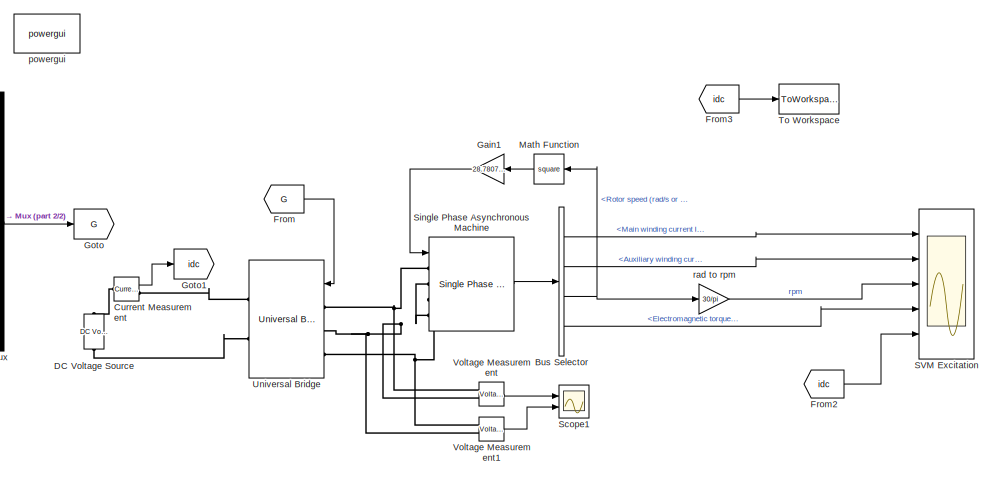
[diagram: root canvas - part 1/2, top right region]
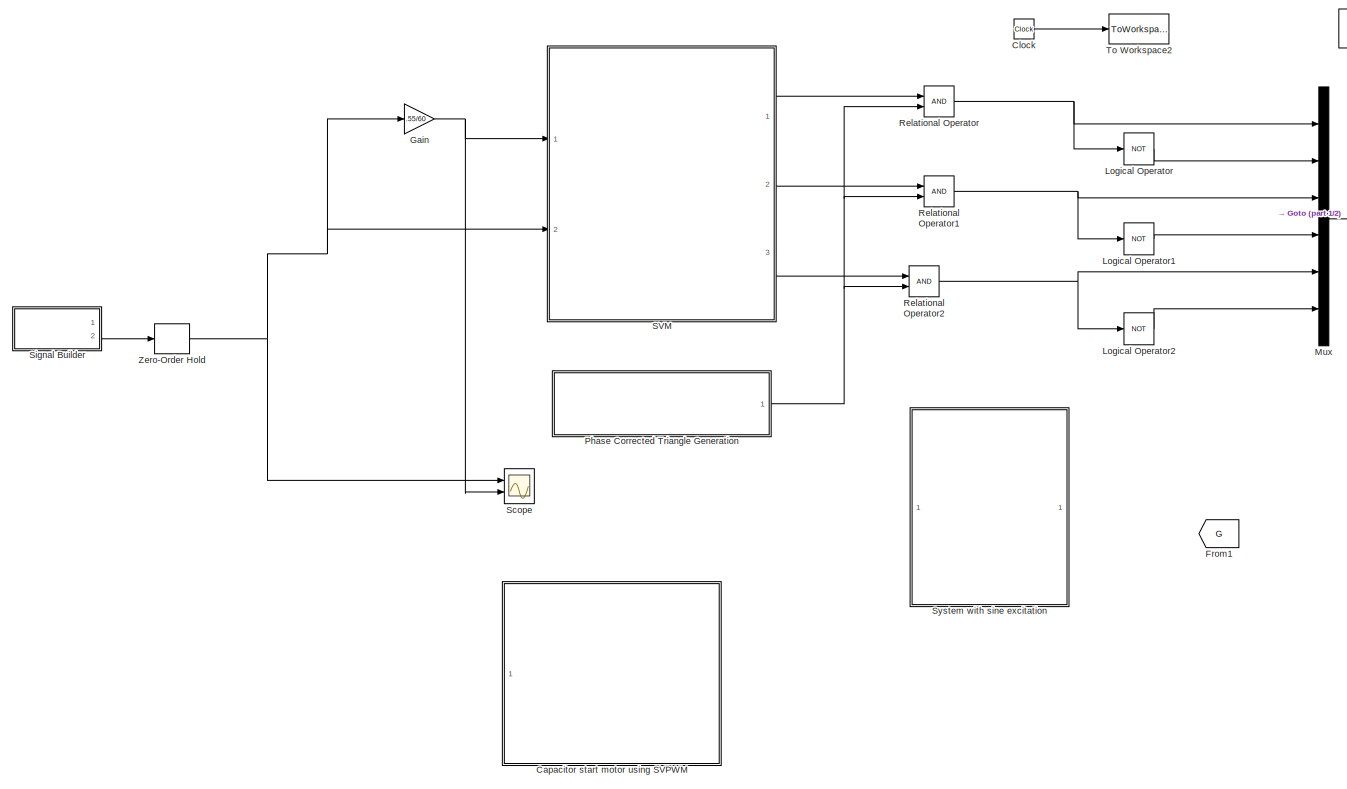
[diagram: root canvas - part 2/2, left side, full height]
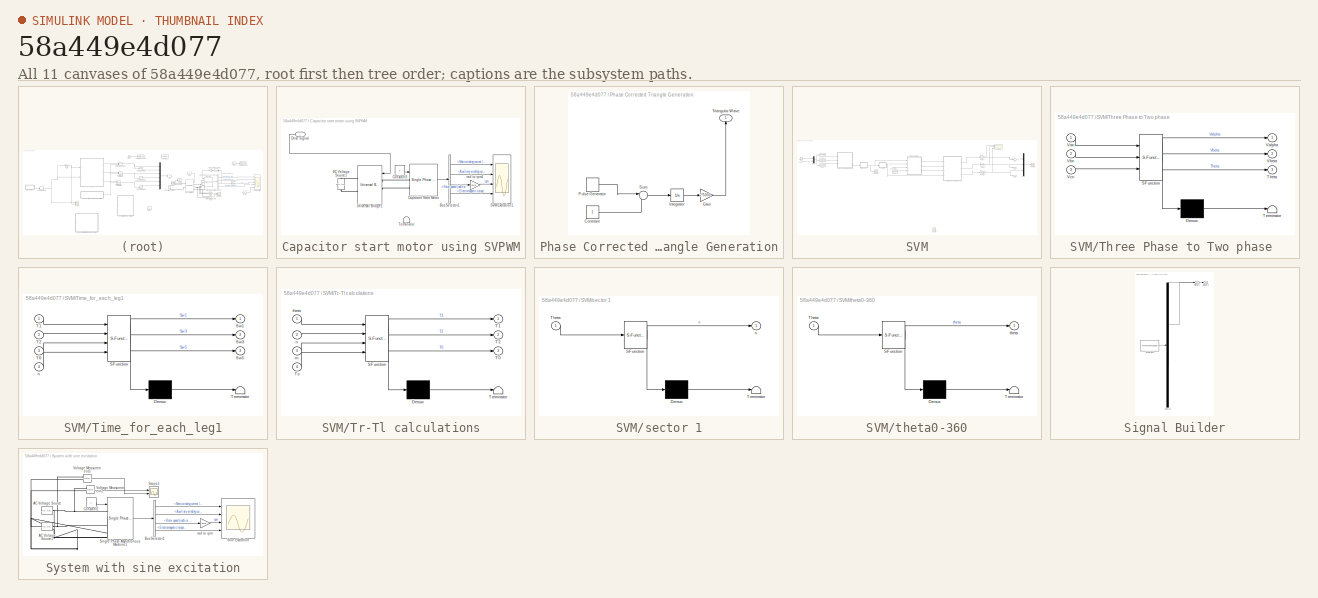
[diagram: thumbnail index - all 11 canvases of the model, root first then tree order]
MODEL slx_58a449e4d077
KIND model
CONFIG AbsTol = auto
CONFIG EnableMultiTasking = on
CONFIG FixedStep = 2e-6
CONFIG MaxStep = auto
CONFIG MinStep = auto
CONFIG RelTol = 1e-3
CONFIG SampleTimeConstraint = Unconstrained
CONFIG Solver = ode45
CONFIG SolverName = ode45
CONFIG StartTime = 0.0
CONFIG StopTime = 10
BLOCK [BusSelector] Bus Selector
  OutputAsBus = off
  OutputSignals = Stator measurements.Main winding current Ia (A or pu),Stator measurements.Auxiliary  winding current Ib (A or pu),Mechanical.Rotor speed (rad/s or pu),Mechanical.Electromagnetic torque Te (N*m or pu)  <repeated x3 — deduplicated; at blocks: Bus Selector, Bus Selector1>
  Ports = [1, 4]
BLOCK [SubSystem] Capacitor start motor using SVPWM
  Ports = [1]
  RequestExecContextInheritance = off
BLOCK [BusSelector] Capacitor start motor using SVPWM/Bus Selector1
  OutputAsBus = off
  Ports = [1, 4]
BLOCK [Reference] Capacitor start motor using SVPWM/Capacitor Start Motor  REF=powerlib/Machines/Single Phase
Asynchronous Machine
  Ports = [1, 1, 0, 0, 0, 2]
  SourceBlock = powerlib/Machines/Single Phase\nAsynchronous Machine
  SourceProductBaseCode = PS
  SourceProductName = Simscape Electrical
  SourceType = Single Phase Asynchronous Machine
BLOCK [Constant] Capacitor start motor using SVPWM/Constant3
BLOCK [Reference] Capacitor start motor using SVPWM/DC Voltage Source1  REF=powerlib/Electrical
Sources/DC Voltage Source
  Ports = [0, 0, 0, 0, 0, 1, 1]
  SourceBlock = powerlib/Electrical\nSources/DC Voltage Source
  SourceProductBaseCode = PS
  SourceProductName = Simscape Electrical
  SourceType = DC Voltage Source
BLOCK [Inport] Capacitor start motor using SVPWM/Drive Signal
  IconDisplay = Port number
BLOCK [Scope] Capacitor start motor using SVPWM/SVM Excitation1
  Floating = off
  NumInputPorts = 4
  Ports = [4]
  ScopeSpecificationString = Simulink.scopes.TimeScopeBlockCfg('CurrentConfiguration', extmgr.ConfigurationSet(extmgr.Configuration('Core','General UI',true),extmgr.Configuration('Core','Source UI',true),extmgr.Configuration('Sources','WiredSimulink',true,'DataLoggingVariableName','ScopeData5'),extmgr.Configuration('Visuals','Time Domain',true,'SerializedDisplays',{struct('MinYLimReal','-31.92791','MaxYLimReal','30.35062','YL...<+4208ch>
BLOCK [Terminator] Capacitor start motor using SVPWM/Terminator
BLOCK [Reference] Capacitor start motor using SVPWM/Universal Bridge1  REF=powerlib/Power
Electronics/Universal Bridge
  Ports = [1, 0, 0, 0, 0, 3, 2]
  SourceBlock = powerlib/Power\nElectronics/Universal Bridge
  SourceProductBaseCode = PS
  SourceProductName = Simscape Electrical
  SourceType = Universal Bridge
BLOCK [Gain] Capacitor start motor using SVPWM/rad to rpm1
  Gain = 30/pi
  OutDataTypeStr = Inherit: Inherit via internal rule
  ParamDataTypeStr = Inherit: Inherit via internal rule
  SaturateOnIntegerOverflow = off
BLOCK [Clock] Clock
BLOCK [Reference] Current Measurement  REF=powerlib/Measurements/Current Measurement
  Ports = [0, 1, 0, 0, 0, 1, 1]
  SourceBlock = powerlib/Measurements/Current Measurement
  SourceProductBaseCode = PS
  SourceProductName = Simscape Electrical
  SourceType = Current Measurement
  UserDataPersistent = on
BLOCK [Reference] DC Voltage Source  REF=powerlib/Electrical
Sources/DC Voltage Source
  Ports = [0, 0, 0, 0, 0, 1, 1]
  SourceBlock = powerlib/Electrical\nSources/DC Voltage Source
  SourceProductBaseCode = PS
  SourceProductName = Simscape Electrical
  SourceType = DC Voltage Source
BLOCK [From] From
  GotoTag = G
BLOCK [From] From1
  GotoTag = G
BLOCK [From] From2
  GotoTag = idc
BLOCK [From] From3
  GotoTag = idc
BLOCK [Gain] Gain
  Gain = .55/60
  OutDataTypeStr = Inherit: Inherit via internal rule
  ParamDataTypeStr = Inherit: Inherit via internal rule
  SaturateOnIntegerOverflow = off
BLOCK [Gain] Gain1
  Gain = 28.780793e-6
  OutDataTypeStr = Inherit: Inherit via internal rule
  ParamDataTypeStr = Inherit: Inherit via internal rule
  SaturateOnIntegerOverflow = off
BLOCK [Goto] Goto
  GotoTag = G
BLOCK [Goto] Goto1
  GotoTag = idc
BLOCK [Logic] Logical Operator
  AllPortsSameDT = off
  Operator = NOT
  OutDataTypeStr = boolean
  Ports = [1, 1]
BLOCK [Logic] Logical Operator1
  AllPortsSameDT = off
  Operator = NOT
  OutDataTypeStr = boolean
  Ports = [1, 1]
BLOCK [Logic] Logical Operator2
  AllPortsSameDT = off
  Operator = NOT
  OutDataTypeStr = boolean
  Ports = [1, 1]
BLOCK [Math] Math Function
  Operator = square
  Ports = [1, 1]
BLOCK [Mux] Mux
  DisplayOption = bar
  Inputs = 6
  Ports = [6, 1]
BLOCK [SubSystem] Phase Corrected Triangle Generation
  Ports = [0, 1]
  RequestExecContextInheritance = off
BLOCK [Constant] Phase Corrected Triangle Generation/Constant
BLOCK [Gain] Phase Corrected Triangle Generation/Gain
  Gain = 2*5000
  OutDataTypeStr = Inherit: Inherit via internal rule
  ParamDataTypeStr = Inherit: Inherit via internal rule
  SaturateOnIntegerOverflow = off
BLOCK [Integrator] Phase Corrected Triangle Generation/Integrator
  Ports = [1, 1]
BLOCK [DiscretePulseGenerator] Phase Corrected Triangle Generation/Pulse Generator
  Amplitude = 2
  Period = 1/5000
  Ports = [0, 1]
  PulseType = Time based
  PulseWidth = 50
BLOCK [Sum] Phase Corrected Triangle Generation/Sum
  IconShape = round
  InputSameDT = off
  Inputs = |+-
  OutDataTypeStr = Inherit: Inherit via internal rule
  Ports = [2, 1]
  SaturateOnIntegerOverflow = off
BLOCK [Outport] Phase Corrected Triangle Generation/Triangular Wave
  IconDisplay = Port number
BLOCK [RelationalOperator] Relational Operator
  InputSameDT = off
  OutDataTypeStr = boolean
  Ports = [2, 1]
BLOCK [RelationalOperator] Relational Operator1
  InputSameDT = off
  OutDataTypeStr = boolean
  Ports = [2, 1]
BLOCK [RelationalOperator] Relational Operator2
  InputSameDT = off
  OutDataTypeStr = boolean
  Ports = [2, 1]
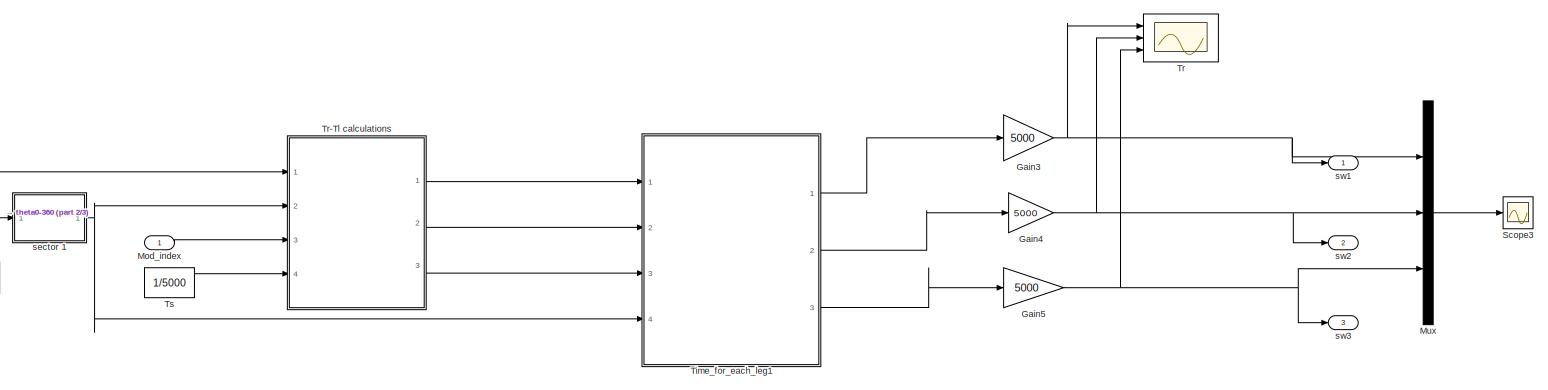
[diagram: SVM - part 1/3, top center region]
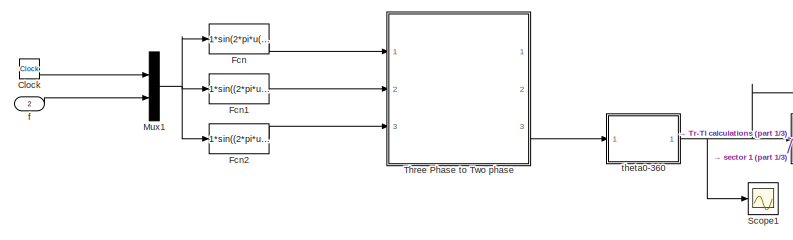
[diagram: SVM - part 2/3, top left region]
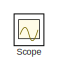
[diagram: SVM - part 3/3, bottom center region]
BLOCK [SubSystem] SVM
  Ports = [2, 3]
  RequestExecContextInheritance = off
BLOCK [Scope] SVM Excitation
  Floating = off
  NumInputPorts = 5
  Ports = [5]
  ScopeSpecificationString = Simulink.scopes.TimeScopeBlockCfg('CurrentConfiguration', extmgr.ConfigurationSet(extmgr.Configuration('Core','General UI',true),extmgr.Configuration('Core','Source UI',true),extmgr.Configuration('Sources','WiredSimulink',true,'DataLoggingVariableName','ScopeData1'),extmgr.Configuration('Visuals','Time Domain',true,'SerializedDisplays',{struct('MinYLimReal','21.66704','MaxYLimReal','22.63705','YLa...<+4898ch>
BLOCK [Clock] SVM/Clock
BLOCK [Fcn] SVM/Fcn
  Expr = 1*sin(2*pi*u(2)*u(1))
BLOCK [Fcn] SVM/Fcn1
  Expr = 1*sin((2*pi*u(2)*u(1))+(2*pi/3))
BLOCK [Fcn] SVM/Fcn2
  Expr = 1*sin((2*pi*u(2)*u(1))+(4*pi/3))
BLOCK [Gain] SVM/Gain3
  Gain = 5000
  OutDataTypeStr = Inherit: Inherit via internal rule
  ParamDataTypeStr = Inherit: Inherit via internal rule
  SaturateOnIntegerOverflow = off
BLOCK [Gain] SVM/Gain4
  Gain = 5000
  OutDataTypeStr = Inherit: Inherit via internal rule
  ParamDataTypeStr = Inherit: Inherit via internal rule
  SaturateOnIntegerOverflow = off
BLOCK [Gain] SVM/Gain5
  Gain = 5000
  OutDataTypeStr = Inherit: Inherit via internal rule
  ParamDataTypeStr = Inherit: Inherit via internal rule
  SaturateOnIntegerOverflow = off
BLOCK [Inport] SVM/Mod_index
  IconDisplay = Port number
BLOCK [Mux] SVM/Mux
  DisplayOption = bar
  Inputs = 3
  Ports = [3, 1]
BLOCK [Mux] SVM/Mux1
  DisplayOption = bar
  Inputs = 2
  Ports = [2, 1]
BLOCK [Scope] SVM/Scope
  Floating = off
  NumInputPorts = 1
  Ports = [1]
  ScopeSpecificationString = C++SS(StrPVP('Location','[5, 49, 1371, 727]'),StrPVP('Open','off'),MxPVP('AxesTitles',53,'struct(''axes1'',''%<SignalLabel>'')'),MxPVP('ScopeGraphics',56,'struct(''FigureColor'',''[0.5 0.5 0.5]'',''AxesColor'',''[0 0 0]'',''AxesTickColor'',''[1 1 1]'',''LineColors'',''[1 1 0;1 0 1;0 1 1;1 0 0;0 1 0;0 0 1]'',''LineStyles'',''-|-|-|-|-|-'',''LineWidths'',''[0.5 0.5 0.5 0.5 0.5 0.5]'',''MarkerStyles'...<+238ch>
BLOCK [Scope] SVM/Scope1
  Floating = off
  NumInputPorts = 1
  Ports = [1]
  ScopeSpecificationString = Simulink.scopes.TimeScopeBlockCfg('CurrentConfiguration', extmgr.ConfigurationSet(extmgr.Configuration('Core','General UI',true),extmgr.Configuration('Core','Source UI',true),extmgr.Configuration('Sources','WiredSimulink',true,'DataLoggingVariableName','ScopeData4'),extmgr.Configuration('Visuals','Time Domain',true,'SerializedDisplays',{struct('MinYLimReal','-0.7854','MaxYLimReal','7.06858','YLabe...<+1432ch>
BLOCK [Scope] SVM/Scope3
  Floating = off
  NumInputPorts = 1
  Ports = [1]
  ScopeSpecificationString = Simulink.scopes.TimeScopeBlockCfg('CurrentConfiguration', extmgr.ConfigurationSet(extmgr.Configuration('Core','General UI',true),extmgr.Configuration('Core','Source UI',true),extmgr.Configuration('Sources','WiredSimulink',true,'DataLoggingVariableName','ScopeData3','DataLoggingSaveFormat','StructureWithTime','DataLoggingDecimation','1','DataLoggingDecimateData',true),extmgr.Configuration('Visuals'...<+1708ch>
BLOCK [SubSystem] SVM/Three Phase to Two phase 
  ErrorFcn = Stateflow.Translate.translate
  PermitHierarchicalResolution = ExplicitOnly
  Ports = [3, 3]
  RequestExecContextInheritance = off
  SFBlockType = MATLAB Function
  TreatAsAtomicUnit = on
BLOCK [Demux] SVM/Three Phase to Two phase / Demux 
  Outputs = 1
  Ports = [1, 1]
BLOCK [S-Function] SVM/Three Phase to Two phase / SFunction 
  EnableBusSupport = on
  FunctionName = sf_sfun
  PortCounts = [3 4]
  Ports = [3, 4]
  SFcnIsStateOwnerBlock = off
  SFunctionDeploymentMode = off
  Tag = Stateflow S-Function SVM_single_phase_induction_motor_new 2
BLOCK [Terminator] SVM/Three Phase to Two phase / Terminator 
BLOCK [Outport] SVM/Three Phase to Two phase /Theta
  IconDisplay = Port number
  Port = 3
BLOCK [Outport] SVM/Three Phase to Two phase /Valpha
  IconDisplay = Port number
BLOCK [Inport] SVM/Three Phase to Two phase /Van
  IconDisplay = Port number
BLOCK [Outport] SVM/Three Phase to Two phase /Vbeta
  IconDisplay = Port number
  Port = 2
BLOCK [Inport] SVM/Three Phase to Two phase /Vbn
  IconDisplay = Port number
  Port = 2
BLOCK [Inport] SVM/Three Phase to Two phase /Vcn
  IconDisplay = Port number
  Port = 3
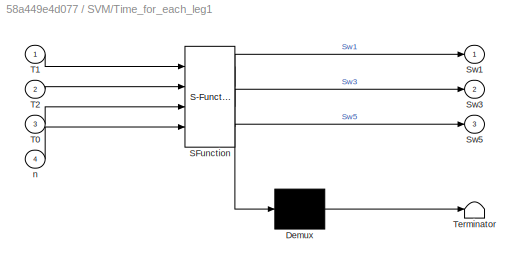
BLOCK [SubSystem] SVM/Time_for_each_leg1
  ErrorFcn = Stateflow.Translate.translate
  PermitHierarchicalResolution = ExplicitOnly
  Ports = [4, 3]
  RequestExecContextInheritance = off
  SFBlockType = MATLAB Function
  TreatAsAtomicUnit = on
BLOCK [Demux] SVM/Time_for_each_leg1/ Demux 
  Outputs = 1
  Ports = [1, 1]
BLOCK [S-Function] SVM/Time_for_each_leg1/ SFunction 
  EnableBusSupport = on
  FunctionName = sf_sfun
  PortCounts = [4 4]
  Ports = [4, 4]
  SFcnIsStateOwnerBlock = off
  SFunctionDeploymentMode = off
  Tag = Stateflow S-Function SVM_single_phase_induction_motor_new 10
BLOCK [Terminator] SVM/Time_for_each_leg1/ Terminator 
BLOCK [Outport] SVM/Time_for_each_leg1/Sw1
  IconDisplay = Port number
BLOCK [Outport] SVM/Time_for_each_leg1/Sw3
  IconDisplay = Port number
  Port = 2
BLOCK [Outport] SVM/Time_for_each_leg1/Sw5
  IconDisplay = Port number
  Port = 3
BLOCK [Inport] SVM/Time_for_each_leg1/T0
  IconDisplay = Port number
  Port = 3
BLOCK [Inport] SVM/Time_for_each_leg1/T1
  IconDisplay = Port number
BLOCK [Inport] SVM/Time_for_each_leg1/T2
  IconDisplay = Port number
  Port = 2
BLOCK [Inport] SVM/Time_for_each_leg1/n
  IconDisplay = Port number
  Port = 4
BLOCK [Scope] SVM/Tr
  Floating = off
  NumInputPorts = 3
  Ports = [3]
  ScopeSpecificationString = Simulink.scopes.TimeScopeBlockCfg('CurrentConfiguration', extmgr.ConfigurationSet(extmgr.Configuration('Core','General UI',true),extmgr.Configuration('Core','Source UI',true),extmgr.Configuration('Sources','WiredSimulink',true,'DataLoggingVariableName','ScopeData2','DataLoggingSaveFormat','StructureWithTime','DataLoggingDecimation','1','DataLoggingDecimateData',true),extmgr.Configuration('Visuals'...<+3737ch>
BLOCK [SubSystem] SVM/Tr-Tl calculations
  ErrorFcn = Stateflow.Translate.translate
  PermitHierarchicalResolution = ExplicitOnly
  Ports = [4, 3]
  RequestExecContextInheritance = off
  SFBlockType = MATLAB Function
  TreatAsAtomicUnit = on
BLOCK [Demux] SVM/Tr-Tl calculations/ Demux 
  Outputs = 1
  Ports = [1, 1]
BLOCK [S-Function] SVM/Tr-Tl calculations/ SFunction 
  EnableBusSupport = on
  FunctionName = sf_sfun
  PortCounts = [4 4]
  Ports = [4, 4]
  SFcnIsStateOwnerBlock = off
  SFunctionDeploymentMode = off
  Tag = Stateflow S-Function SVM_single_phase_induction_motor_new 9
BLOCK [Terminator] SVM/Tr-Tl calculations/ Terminator 
BLOCK [Outport] SVM/Tr-Tl calculations/T0
  IconDisplay = Port number
  Port = 3
BLOCK [Outport] SVM/Tr-Tl calculations/T1
  IconDisplay = Port number
BLOCK [Outport] SVM/Tr-Tl calculations/T2
  IconDisplay = Port number
  Port = 2
BLOCK [Inport] SVM/Tr-Tl calculations/Ts
  IconDisplay = Port number
  Port = 4
BLOCK [Inport] SVM/Tr-Tl calculations/m
  IconDisplay = Port number
  Port = 3
BLOCK [Inport] SVM/Tr-Tl calculations/n
  IconDisplay = Port number
  Port = 2
BLOCK [Inport] SVM/Tr-Tl calculations/theta
  IconDisplay = Port number
BLOCK [Constant] SVM/Ts 
  Value = 1/5000
BLOCK [Inport] SVM/f
  IconDisplay = Port number
  Port = 2
BLOCK [SubSystem] SVM/sector 1
  ErrorFcn = Stateflow.Translate.translate
  PermitHierarchicalResolution = ExplicitOnly
  Ports = [1, 1]
  RequestExecContextInheritance = off
  SFBlockType = MATLAB Function
  TreatAsAtomicUnit = on
BLOCK [Demux] SVM/sector 1/ Demux 
  Outputs = 1
  Ports = [1, 1]
BLOCK [S-Function] SVM/sector 1/ SFunction 
  EnableBusSupport = on
  FunctionName = sf_sfun
  PortCounts = [1 2]
  Ports = [1, 2]
  SFcnIsStateOwnerBlock = off
  SFunctionDeploymentMode = off
  Tag = Stateflow S-Function SVM_single_phase_induction_motor_new 8
BLOCK [Terminator] SVM/sector 1/ Terminator 
BLOCK [Inport] SVM/sector 1/Theta
  IconDisplay = Port number
BLOCK [Outport] SVM/sector 1/n
  IconDisplay = Port number
BLOCK [Outport] SVM/sw1
  IconDisplay = Port number
BLOCK [Outport] SVM/sw2
  IconDisplay = Port number
  Port = 2
BLOCK [Outport] SVM/sw3
  IconDisplay = Port number
  Port = 3
BLOCK [SubSystem] SVM/theta0-360
  ErrorFcn = Stateflow.Translate.translate
  PermitHierarchicalResolution = ExplicitOnly
  Ports = [1, 1]
  RequestExecContextInheritance = off
  SFBlockType = MATLAB Function
  TreatAsAtomicUnit = on
BLOCK [Demux] SVM/theta0-360/ Demux 
  Outputs = 1
  Ports = [1, 1]
BLOCK [S-Function] SVM/theta0-360/ SFunction 
  EnableBusSupport = on
  FunctionName = sf_sfun
  PortCounts = [1 2]
  Ports = [1, 2]
  SFcnIsStateOwnerBlock = off
  SFunctionDeploymentMode = off
  Tag = Stateflow S-Function SVM_single_phase_induction_motor_new 7
BLOCK [Terminator] SVM/theta0-360/ Terminator 
BLOCK [Inport] SVM/theta0-360/Theta
  IconDisplay = Port number
BLOCK [Outport] SVM/theta0-360/theta
  IconDisplay = Port number
BLOCK [Scope] Scope
  Floating = off
  NumInputPorts = 2
  Ports = [2]
  ScopeSpecificationString = Simulink.scopes.TimeScopeBlockCfg('CurrentConfiguration', extmgr.ConfigurationSet(extmgr.Configuration('Core','General UI',true),extmgr.Configuration('Core','Source UI',true),extmgr.Configuration('Sources','WiredSimulink',true,'DataLoggingVariableName','ScopeData6'),extmgr.Configuration('Visuals','Time Domain',true,'SerializedDisplays',{struct('MinYLimReal','3.75','MaxYLimReal','66.25','YLabelReal...<+2630ch>
BLOCK [Scope] Scope1
  Floating = off
  NumInputPorts = 2
  Ports = [2]
  ScopeSpecificationString = Simulink.scopes.TimeScopeBlockCfg('CurrentConfiguration', extmgr.ConfigurationSet(extmgr.Configuration('Core','General UI',true),extmgr.Configuration('Core','Source UI',true),extmgr.Configuration('Sources','WiredSimulink',true,'DataLoggingVariableName','vol','DataLogging',true),extmgr.Configuration('Visuals','Time Domain',true,'SerializedDisplays',{struct('MinYLimReal','-500.02154','MaxYLimReal','...<+2761ch>
BLOCK [SubSystem] Signal Builder
  ClipboardFcn = sigbuilder_block('clipboard');
  CloseFcn = sigbuilder_block('close');
  ContinueFcn = sigbuilder_block('continue');
  CopyFcn = sigbuilder_block('copy');
  DeleteFcn = sigbuilder_block('delete');
  LoadFcn = sigbuilder_block('load');
  MaskHideContents = on
  ModelCloseFcn = sigbuilder_block('modelClose');
  NameChangeFcn = sigbuilder_block('namechange');
  OpenFcn = sigbuilder_block('open',[276.5 93 550.5 362.5 ]);
  PauseFcn = sigbuilder_block('pause');
  Ports = [0, 2]
  PreSaveFcn = sigbuilder_block('preSave');
  RequestExecContextInheritance = off
  StartFcn = sigbuilder_block('start');
  StopFcn = sigbuilder_block('stop');
  Tag = STV Subsys
BLOCK [Demux] Signal Builder/Demux
  Outputs = 2
  Ports = [1, 2]
  Tag = STV Demux
BLOCK [FromWorkspace] Signal Builder/FromWs
  SampleTime = 0
  Tag = STV FromWs
  VariableName = tuvar
  ZeroCross = on
BLOCK [Outport] Signal Builder/Signal 1
  IconDisplay = Port number
  Tag = STV Outport
BLOCK [Outport] Signal Builder/Signal 2
  IconDisplay = Port number
  Port = 2
  Tag = STV Outport
BLOCK [Reference] Single Phase Asynchronous Machine  REF=powerlib/Machines/Single Phase
Asynchronous Machine
  Ports = [1, 1, 0, 0, 0, 4]
  SourceBlock = powerlib/Machines/Single Phase\nAsynchronous Machine
  SourceProductBaseCode = PS
  SourceProductName = Simscape Electrical
  SourceType = Single Phase Asynchronous Machine
BLOCK [SubSystem] System with sine excitation
  Ports = []
  RequestExecContextInheritance = off
BLOCK [Reference] System with sine excitation/AC Voltage Source  REF=powerlib/Electrical
Sources/AC Voltage Source
  Ports = [0, 0, 0, 0, 0, 1, 1]
  SourceBlock = powerlib/Electrical\nSources/AC Voltage Source
  SourceProductBaseCode = PS
  SourceProductName = Simscape Electrical
  SourceType = AC Voltage Source
BLOCK [Reference] System with sine excitation/AC Voltage Source1  REF=powerlib/Electrical
Sources/AC Voltage Source
  Ports = [0, 0, 0, 0, 0, 1, 1]
  SourceBlock = powerlib/Electrical\nSources/AC Voltage Source
  SourceProductBaseCode = PS
  SourceProductName = Simscape Electrical
  SourceType = AC Voltage Source
BLOCK [BusSelector] System with sine excitation/Bus Selector1
  OutputAsBus = off
  Ports = [1, 4]
BLOCK [Constant] System with sine excitation/Constant1
BLOCK [Scope] System with sine excitation/Scope3
  Floating = off
  NumInputPorts = 2
  Ports = [2]
  ScopeSpecificationString = Simulink.scopes.TimeScopeBlockCfg('CurrentConfiguration', extmgr.ConfigurationSet(extmgr.Configuration('Core','General UI',true),extmgr.Configuration('Core','Source UI',true),extmgr.Configuration('Sources','WiredSimulink',true,'DataLoggingVariableName','vol2','DataLogging',true),extmgr.Configuration('Visuals','Time Domain',true,'SerializedDisplays',{struct('MinYLimReal','-194.45436','MaxYLimReal',...<+2811ch>
BLOCK [Scope] System with sine excitation/Sine Excitation
  Floating = off
  NumInputPorts = 4
  Ports = [4]
  ScopeSpecificationString = Simulink.scopes.TimeScopeBlockCfg('CurrentConfiguration', extmgr.ConfigurationSet(extmgr.Configuration('Core','General UI',true),extmgr.Configuration('Core','Source UI',true),extmgr.Configuration('Sources','WiredSimulink',true,'DataLoggingVariableName','ScopeData3'),extmgr.Configuration('Visuals','Time Domain',true,'SerializedDisplays',{struct('MinYLimReal','-5.57379','MaxYLimReal','5.5738','YLabe...<+3869ch>
BLOCK [Reference] System with sine excitation/Single Phase Asynchronous Machine1  REF=powerlib/Machines/Single Phase
Asynchronous Machine
  Ports = [1, 1, 0, 0, 0, 4]
  SourceBlock = powerlib/Machines/Single Phase\nAsynchronous Machine
  SourceProductBaseCode = PS
  SourceProductName = Simscape Electrical
  SourceType = Single Phase Asynchronous Machine
BLOCK [Reference] System with sine excitation/Voltage Measurement2  REF=powerlib/Measurements/Voltage Measurement
  Ports = [0, 1, 0, 0, 0, 2]
  SourceBlock = powerlib/Measurements/Voltage Measurement
  SourceProductBaseCode = PS
  SourceProductName = Simscape Electrical
  SourceType = Voltage Measurement
  UserDataPersistent = on
BLOCK [Reference] System with sine excitation/Voltage Measurement3  REF=powerlib/Measurements/Voltage Measurement
  Ports = [0, 1, 0, 0, 0, 2]
  SourceBlock = powerlib/Measurements/Voltage Measurement
  SourceProductBaseCode = PS
  SourceProductName = Simscape Electrical
  SourceType = Voltage Measurement
  UserDataPersistent = on
BLOCK [Gain] System with sine excitation/rad to rpm
  Gain = 30/pi
  OutDataTypeStr = Inherit: Inherit via internal rule
  ParamDataTypeStr = Inherit: Inherit via internal rule
  SaturateOnIntegerOverflow = off
BLOCK [ToWorkspace] To Workspace
  FixptAsFi = on
  MaxDataPoints = inf
  Ports = [1]
  SampleTime = -1
  SaveFormat = Timeseries
  VariableName = idc
BLOCK [ToWorkspace] To Workspace2
  MaxDataPoints = inf
  Ports = [1]
  SampleTime = -1
  VariableName = time
BLOCK [Reference] Universal Bridge  REF=powerlib/Power
Electronics/Universal Bridge
  Ports = [1, 0, 0, 0, 0, 3, 2]
  SourceBlock = powerlib/Power\nElectronics/Universal Bridge
  SourceProductBaseCode = PS
  SourceProductName = Simscape Electrical
  SourceType = Universal Bridge
BLOCK [Reference] Voltage Measurement  REF=powerlib/Measurements/Voltage Measurement
  Ports = [0, 1, 0, 0, 0, 2]
  SourceBlock = powerlib/Measurements/Voltage Measurement
  SourceProductBaseCode = PS
  SourceProductName = Simscape Electrical
  SourceType = Voltage Measurement
  UserDataPersistent = on
BLOCK [Reference] Voltage Measurement1  REF=powerlib/Measurements/Voltage Measurement
  Ports = [0, 1, 0, 0, 0, 2]
  SourceBlock = powerlib/Measurements/Voltage Measurement
  SourceProductBaseCode = PS
  SourceProductName = Simscape Electrical
  SourceType = Voltage Measurement
  UserDataPersistent = on
BLOCK [ZeroOrderHold] Zero-Order Hold
BLOCK [Reference] powergui  REF=powerlib/powergui
  Ports = []
  Priority = 1
  SourceBlock = powerlib/powergui
  SourceProductBaseCode = PS
  SourceProductName = Simscape Electrical
  SourceType = PSB option menu block
BLOCK [Gain] rad to rpm
  Gain = 30/pi
  OutDataTypeStr = Inherit: Inherit via internal rule
  ParamDataTypeStr = Inherit: Inherit via internal rule
  SaturateOnIntegerOverflow = off
LINE Bus Selector:1 -> SVM Excitation:1
LINE Bus Selector:2 -> SVM Excitation:2
NET Bus Selector:3 -> Math Function:1, rad to rpm:1
LINE Bus Selector:4 -> SVM Excitation:4
LINE Capacitor start motor using SVPWM/Bus Selector1:1 -> Capacitor start motor using SVPWM/SVM Excitation1:1
LINE Capacitor start motor using SVPWM/Bus Selector1:2 -> Capacitor start motor using SVPWM/SVM Excitation1:2
LINE Capacitor start motor using SVPWM/Bus Selector1:3 -> Capacitor start motor using SVPWM/rad to rpm1:1
LINE Capacitor start motor using SVPWM/Bus Selector1:4 -> Capacitor start motor using SVPWM/SVM Excitation1:4
LINE Capacitor start motor using SVPWM/Capacitor Start Motor:1 -> Capacitor start motor using SVPWM/Bus Selector1:1
LINE Capacitor start motor using SVPWM/Constant3:1 -> Capacitor start motor using SVPWM/Capacitor Start Motor:1
LINE Capacitor start motor using SVPWM/Drive Signal:1 -> Capacitor start motor using SVPWM/Universal Bridge1:1
LINE Capacitor start motor using SVPWM/rad to rpm1:1 -> Capacitor start motor using SVPWM/SVM Excitation1:3
LINE Clock:1 -> To Workspace2:1
LINE Current Measurement:1 -> Goto1:1
LINE From2:1 -> SVM Excitation:5
LINE From3:1 -> To Workspace:1
LINE From:1 -> Universal Bridge:1
LINE Gain1:1 -> Single Phase Asynchronous Machine:1
NET Gain:1 -> SVM:1, Scope:2
LINE Logical Operator1:1 -> Mux:4
LINE Logical Operator2:1 -> Mux:6
LINE Logical Operator:1 -> Mux:2
LINE Math Function:1 -> Gain1:1
LINE Mux:1 -> Goto:1
LINE Phase Corrected Triangle Generation/Constant:1 -> Phase Corrected Triangle Generation/Sum:2
LINE Phase Corrected Triangle Generation/Gain:1 -> Phase Corrected Triangle Generation/Triangular Wave:1
LINE Phase Corrected Triangle Generation/Integrator:1 -> Phase Corrected Triangle Generation/Gain:1
LINE Phase Corrected Triangle Generation/Pulse Generator:1 -> Phase Corrected Triangle Generation/Sum:1
LINE Phase Corrected Triangle Generation/Sum:1 -> Phase Corrected Triangle Generation/Integrator:1
NET Phase Corrected Triangle Generation:1 -> Relational Operator1:2, Relational Operator2:2, Relational Operator:2
NET Relational Operator1:1 -> Logical Operator1:1, Mux:3
NET Relational Operator2:1 -> Logical Operator2:1, Mux:5
NET Relational Operator:1 -> Logical Operator:1, Mux:1
LINE SVM/Clock:1 -> SVM/Mux1:1
LINE SVM/Fcn1:1 -> SVM/Three Phase to Two phase :2
LINE SVM/Fcn2:1 -> SVM/Three Phase to Two phase :3
LINE SVM/Fcn:1 -> SVM/Three Phase to Two phase :1
NET SVM/Gain3:1 -> SVM/Mux:1, SVM/Tr:1, SVM/sw1:1
NET SVM/Gain4:1 -> SVM/Mux:2, SVM/Tr:2, SVM/sw2:1
NET SVM/Gain5:1 -> SVM/Mux:3, SVM/Tr:3, SVM/sw3:1
LINE SVM/Mod_index:1 -> SVM/Tr-Tl calculations:3
NET SVM/Mux1:1 -> SVM/Fcn1:1, SVM/Fcn2:1, SVM/Fcn:1
LINE SVM/Mux:1 -> SVM/Scope3:1
LINE SVM/Three Phase to Two phase :3 -> SVM/theta0-360:1
LINE SVM/Time_for_each_leg1:1 -> SVM/Gain3:1
LINE SVM/Time_for_each_leg1:2 -> SVM/Gain4:1
LINE SVM/Time_for_each_leg1:3 -> SVM/Gain5:1
LINE SVM/Tr-Tl calculations:1 -> SVM/Time_for_each_leg1:1
LINE SVM/Tr-Tl calculations:2 -> SVM/Time_for_each_leg1:2
LINE SVM/Tr-Tl calculations:3 -> SVM/Time_for_each_leg1:3
LINE SVM/Ts :1 -> SVM/Tr-Tl calculations:4
LINE SVM/f:1 -> SVM/Mux1:2
NET SVM/sector 1:1 -> SVM/Time_for_each_leg1:4, SVM/Tr-Tl calculations:2
NET SVM/theta0-360:1 -> SVM/Scope1:1, SVM/Tr-Tl calculations:1, SVM/sector 1:1
LINE SVM:1 -> Relational Operator:1
LINE SVM:2 -> Relational Operator1:1
LINE SVM:3 -> Relational Operator2:1
LINE Signal Builder:2 -> Zero-Order Hold:1
LINE Single Phase Asynchronous Machine:1 -> Bus Selector:1
LINE System with sine excitation/Bus Selector1:1 -> System with sine excitation/Sine Excitation:1
LINE System with sine excitation/Bus Selector1:2 -> System with sine excitation/Sine Excitation:2
LINE System with sine excitation/Bus Selector1:3 -> System with sine excitation/rad to rpm:1
LINE System with sine excitation/Bus Selector1:4 -> System with sine excitation/Sine Excitation:4
LINE System with sine excitation/Constant1:1 -> System with sine excitation/Single Phase Asynchronous Machine1:1
LINE System with sine excitation/Single Phase Asynchronous Machine1:1 -> System with sine excitation/Bus Selector1:1
LINE System with sine excitation/Voltage Measurement2:1 -> System with sine excitation/Scope3:1
LINE System with sine excitation/Voltage Measurement3:1 -> System with sine excitation/Scope3:2
LINE System with sine excitation/rad to rpm:1 -> System with sine excitation/Sine Excitation:3
LINE Voltage Measurement1:1 -> Scope1:2
LINE Voltage Measurement:1 -> Scope1:1
NET Zero-Order Hold:1 -> Gain:1, SVM:2, Scope:1
LINE rad to rpm:1 -> SVM Excitation:3
PLINE Capacitor start motor using SVPWM/Capacitor Start Motor:LConn1 -- Capacitor start motor using SVPWM/Universal Bridge1:LConn1
PLINE Capacitor start motor using SVPWM/Capacitor Start Motor:LConn2 -- Capacitor start motor using SVPWM/Universal Bridge1:LConn2
PLINE Capacitor start motor using SVPWM/DC Voltage Source1:LConn1 -- Capacitor start motor using SVPWM/Universal Bridge1:RConn2
PLINE Capacitor start motor using SVPWM/DC Voltage Source1:RConn1 -- Capacitor start motor using SVPWM/Universal Bridge1:RConn1
PLINE Current Measurement:LConn1 -- DC Voltage Source:RConn1
PLINE Current Measurement:RConn1 -- Universal Bridge:RConn1
PLINE DC Voltage Source:LConn1 -- Universal Bridge:RConn2
PNET net1: Single Phase Asynchronous Machine:LConn1 -- Universal Bridge:LConn1 -- Voltage Measurement:LConn1
PNET net2: Single Phase Asynchronous Machine:LConn2 -- Single Phase Asynchronous Machine:LConn4 -- Universal Bridge:LConn2 -- Voltage Measurement1:LConn2 -- Voltage Measurement:LConn2
PNET net3: Single Phase Asynchronous Machine:LConn3 -- Universal Bridge:LConn3 -- Voltage Measurement1:LConn1
PNET net4: System with sine excitation/AC Voltage Source1:LConn1 -- System with sine excitation/AC Voltage Source:LConn1 -- System with sine excitation/Single Phase Asynchronous Machine1:LConn2 -- System with sine excitation/Single Phase Asynchronous Machine1:LConn4 -- System with sine excitation/Voltage Measurement2:LConn2 -- System with sine excitation/Voltage Measurement3:LConn2
PNET net5: System with sine excitation/AC Voltage Source1:RConn1 -- System with sine excitation/Single Phase Asynchronous Machine1:LConn3 -- System with sine excitation/Voltage Measurement3:LConn1
PNET net6: System with sine excitation/AC Voltage Source:RConn1 -- System with sine excitation/Single Phase Asynchronous Machine1:LConn1 -- System with sine excitation/Voltage Measurement2:LConn1
note: NET lines group one-source signal fan-out (src -> all destinations, sorted); 1:1 wires keep LINE; PNET lines group multi-terminal physical nets as a canonical sorted terminal list (undirected conserving connections); 2-terminal nets keep the pairwise PLINE form
CHART SVM/Three Phase to Two phase  states=1 transitions=1
  STATE_LABEL 'eML_blk_kernel()'
  STATE_LABEL 'SCRIPT:\nfunction [Valpha,Vbeta,Theta] = three_to_two_phase(Van,Vbn,Vcn)\n%#codegen\nValpha= Van-Vbn/2-Vcn/2;\nVbeta = sqrt(3)/2*(Vbn-Vcn);\nTheta = atan2(Vbeta,Valpha);'
CHART SVM/theta0-360 states=1 transitions=1
  STATE_LABEL 'eML_blk_kernel()'
  STATE_LABEL 'SCRIPT:\nfunction theta = fcn(Theta)\ntheta=0;\n%#codegen\nif (Theta<0)\n    theta= 2*pi+Theta;\nend\nif (Theta>=0)\n    theta=Theta;\nend'
CHART SVM/sector
1 states=1 transitions=1
  STATE_LABEL 'eML_blk_kernel()'
  STATE_LABEL 'SCRIPT:\nfunction n = sector(Theta)\n%#codegen\nn=0;\nif (Theta<pi/4) && (Theta >=0)\n    n=1;\nend\nif (Theta<pi/2) && (Theta >=pi/4)\n    n=2;\nend\nif (Theta<pi) && (Theta >=pi/2)\n    n=3;\nend\nif (Theta<5*pi/4) && (Theta >=pi)\n    n=4;\nend\nif (Theta<3*pi/2) && (Theta >=5*pi/4)\n    n=5;\nend\nif (Theta<2*pi) && (Theta >=3*pi/2)\n    n=6;\nend\n\n'
CHART SVM/Tr-Tl calculations states=1 transitions=1
  STATE_LABEL 'eML_blk_kernel()'
  STATE_LABEL 'SCRIPT:\nfunction [T1,T2,T0] = fcn(theta,n,m,Ts)\nT1=0;\nT2=0;\nif (n==1)\n    T1 =Ts*m*sin(pi/4-theta);\n    T2= (1/sqrt(2))*Ts*m*sin(theta);\n    \nend\nif (n==2)\n    T1= Ts*m*sin(theta-pi/4);\n    T2 =(1/sqrt(2))* Ts*m*cos(theta);\n    \nend\nif (n==3)\n    T1 = (1/sqrt(2))*Ts*m*sin(theta);\n    T2= m*Ts*sin(theta-pi/2)/sqrt(2);\n    \nend\nif (n==4)\n    T1= (1/sqrt(2))*(-Ts*m*sin(pi-theta));\n    T2 =-Ts*m*sin(t...<+242ch>'
CHART SVM/Time_for_each_leg1 states=1 transitions=1
  STATE_LABEL 'eML_blk_kernel()'
  STATE_LABEL 'SCRIPT:\nfunction [Sw1,Sw3,Sw5]= Time_for_each_leg(T1,T2,T0,n)\n\n%#codegen\nSw1=0;\nSw3=0;\nSw5=0;\nif (n==1)\nSw1=T1+T2+T0/2;\nSw3=T0/2;\nSw5=T2+T0/2;\nend\nif (n==2)\nSw1=T2+T0/2;\nSw3=T0/2;\nSw5=T1+T2+T0/2;\nend\nif (n==3)\nSw1=T0/2;\nSw3=T2+T0/2;\nSw5=T1+T2+T0/2;\nend\nif (n==4)\nSw1=T0/2;\nSw3=T1+T2+T0/2;\nSw5=T2+T0/2;\nend\nif (n==5)\nSw1=T2+T0/2;\nSw3=T1+T2+T0/2;\nSw5=T0/2;\nend\nif (n==6)\nSw1=T1+T2+T0/2;\nSw3=T2+T0/2;\nSw...<+11ch>'
